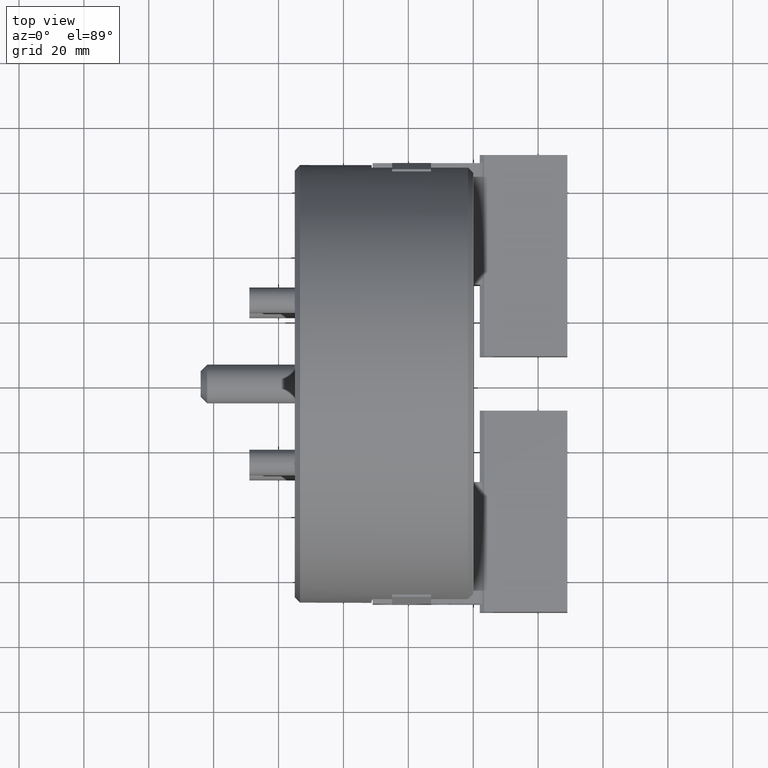
[diagram: clean part render]
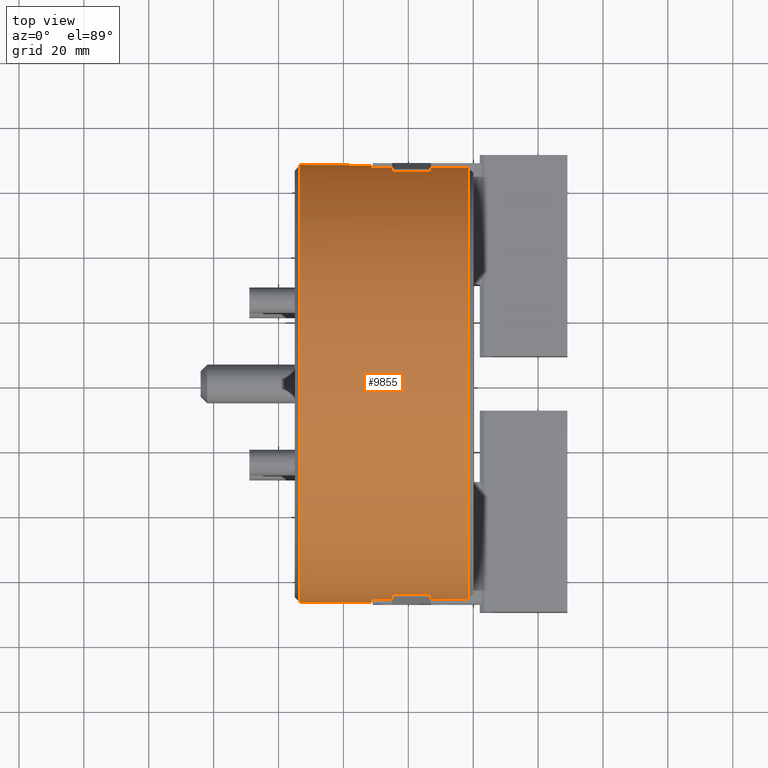
[diagram: same view with one face highlighted and labeled with its STEP entity id]
A machine part, top view. The second image highlights one B-rep face of the part: STEP entity #9855.
In plain terms, the highlighted cylindrical surface (bore or boss wall) has radius 67.5 mm, axis along (1, 0, 0).
Its self-contained STEP definition (entity closure, byte-faithful):
#151=CYLINDRICAL_SURFACE('',#10779,67.5);
#318=CIRCLE('',#10076,67.5);
#319=CIRCLE('',#10079,67.5);
#322=CIRCLE('',#10086,67.5);
#323=CIRCLE('',#10089,67.5);
#342=CIRCLE('',#10131,67.5);
#345=CIRCLE('',#10141,67.5);
#346=CIRCLE('',#10143,67.5);
#368=CIRCLE('',#10183,67.5);
#369=CIRCLE('',#10185,67.5);
#371=CIRCLE('',#10189,67.5);
#373=CIRCLE('',#10192,67.5);
#376=CIRCLE('',#10198,67.5);
#377=CIRCLE('',#10202,67.5);
#378=CIRCLE('',#10204,67.5);
#380=CIRCLE('',#10208,67.5);
#383=CIRCLE('',#10212,67.5);
#384=CIRCLE('',#10215,67.5);
#387=CIRCLE('',#10219,67.5);
#388=CIRCLE('',#10221,67.5);
#390=CIRCLE('',#10225,67.5);
#574=CIRCLE('',#10764,67.5);
#3060=ORIENTED_EDGE('',*,*,#3600,.F.);
#3061=ORIENTED_EDGE('',*,*,#3691,.T.);
#3062=ORIENTED_EDGE('',*,*,#3686,.T.);
#3063=ORIENTED_EDGE('',*,*,#3827,.T.);
#3064=ORIENTED_EDGE('',*,*,#3830,.T.);
#3065=ORIENTED_EDGE('',*,*,#3836,.T.);
#3066=ORIENTED_EDGE('',*,*,#3838,.T.);
#3067=ORIENTED_EDGE('',*,*,#3840,.T.);
#3068=ORIENTED_EDGE('',*,*,#3844,.T.);
#3069=ORIENTED_EDGE('',*,*,#3848,.T.);
#3070=ORIENTED_EDGE('',*,*,#3853,.F.);
#3071=ORIENTED_EDGE('',*,*,#3856,.F.);
#3072=ORIENTED_EDGE('',*,*,#3858,.F.);
#3073=ORIENTED_EDGE('',*,*,#3861,.F.);
#3074=ORIENTED_EDGE('',*,*,#3863,.F.);
#3075=ORIENTED_EDGE('',*,*,#3869,.F.);
#3076=ORIENTED_EDGE('',*,*,#3871,.F.);
#3077=ORIENTED_EDGE('',*,*,#3713,.F.);
#3078=ORIENTED_EDGE('',*,*,#3659,.T.);
#3079=ORIENTED_EDGE('',*,*,#3712,.F.);
#3080=ORIENTED_EDGE('',*,*,#3629,.F.);
#3081=ORIENTED_EDGE('',*,*,#3624,.T.);
#3082=ORIENTED_EDGE('',*,*,#3875,.T.);
#3083=ORIENTED_EDGE('',*,*,#3878,.T.);
#3084=ORIENTED_EDGE('',*,*,#3879,.T.);
#3085=ORIENTED_EDGE('',*,*,#3619,.T.);
#3086=ORIENTED_EDGE('',*,*,#3617,.T.);
#3087=ORIENTED_EDGE('',*,*,#3707,.T.);
#3088=ORIENTED_EDGE('',*,*,#3882,.T.);
#3089=ORIENTED_EDGE('',*,*,#3702,.F.);
#3090=ORIENTED_EDGE('',*,*,#3610,.F.);
#3091=ORIENTED_EDGE('',*,*,#3608,.F.);
#3092=ORIENTED_EDGE('',*,*,#3883,.F.);
#3093=ORIENTED_EDGE('',*,*,#3888,.F.);
#3094=ORIENTED_EDGE('',*,*,#3889,.F.);
#3095=ORIENTED_EDGE('',*,*,#3602,.F.);
#3096=ORIENTED_EDGE('',*,*,#4557,.T.);
#3600=EDGE_CURVE('',#4846,#4847,#5765,.T.);
#3602=EDGE_CURVE('',#4847,#4848,#318,.T.);
#3608=EDGE_CURVE('',#4851,#4852,#319,.T.);
#3610=EDGE_CURVE('',#4852,#4853,#5773,.T.);
#3617=EDGE_CURVE('',#4858,#4857,#5778,.T.);
#3619=EDGE_CURVE('',#4859,#4858,#322,.T.);
#3624=EDGE_CURVE('',#4862,#4863,#323,.T.);
#3629=EDGE_CURVE('',#4862,#4864,#5787,.T.);
#3659=EDGE_CURVE('',#4886,#4885,#5801,.T.);
#3686=EDGE_CURVE('',#4909,#4910,#5828,.T.);
#3691=EDGE_CURVE('',#4846,#4909,#342,.T.);
#3702=EDGE_CURVE('',#4853,#4922,#5841,.T.);
#3707=EDGE_CURVE('',#4857,#4925,#5845,.T.);
#3712=EDGE_CURVE('',#4864,#4885,#345,.T.);
#3713=EDGE_CURVE('',#4886,#4928,#346,.T.);
#3827=EDGE_CURVE('',#4910,#5021,#368,.T.);
#3830=EDGE_CURVE('',#5021,#5023,#369,.T.);
#3836=EDGE_CURVE('',#5023,#5027,#5944,.T.);
#3838=EDGE_CURVE('',#5027,#5028,#371,.T.);
#3840=EDGE_CURVE('',#5028,#5030,#373,.T.);
#3844=EDGE_CURVE('',#5030,#5032,#5949,.T.);
#3848=EDGE_CURVE('',#5032,#5035,#5953,.T.);
#3853=EDGE_CURVE('',#5038,#5035,#376,.T.);
#3856=EDGE_CURVE('',#5040,#5038,#5958,.T.);
#3858=EDGE_CURVE('',#5041,#5040,#5960,.T.);
#3861=EDGE_CURVE('',#5043,#5041,#377,.T.);
#3863=EDGE_CURVE('',#5044,#5043,#378,.T.);
#3869=EDGE_CURVE('',#5048,#5044,#5968,.T.);
#3871=EDGE_CURVE('',#4928,#5048,#380,.T.);
#3875=EDGE_CURVE('',#4863,#5051,#383,.T.);
#3878=EDGE_CURVE('',#5051,#5053,#5973,.T.);
#3879=EDGE_CURVE('',#5053,#4859,#384,.T.);
#3882=EDGE_CURVE('',#4925,#4922,#387,.T.);
#3883=EDGE_CURVE('',#5055,#4851,#388,.T.);
#3888=EDGE_CURVE('',#5058,#5055,#5977,.T.);
#3889=EDGE_CURVE('',#4848,#5058,#390,.T.);
#4557=EDGE_CURVE('',#5472,#5472,#574,.T.);
#4846=VERTEX_POINT('',#14315);
#4847=VERTEX_POINT('',#14317);
#4848=VERTEX_POINT('',#14321);
#4851=VERTEX_POINT('',#14331);
#4852=VERTEX_POINT('',#14333);
#4853=VERTEX_POINT('',#14337);
#4857=VERTEX_POINT('',#14347);
#4858=VERTEX_POINT('',#14351);
#4859=VERTEX_POINT('',#14355);
#4862=VERTEX_POINT('',#14365);
#4863=VERTEX_POINT('',#14366);
#4864=VERTEX_POINT('',#14371);
#4885=VERTEX_POINT('',#14440);
#4886=VERTEX_POINT('',#14442);
#4909=VERTEX_POINT('',#14496);
#4910=VERTEX_POINT('',#14497);
#4922=VERTEX_POINT('',#14529);
#4925=VERTEX_POINT('',#14539);
#4928=VERTEX_POINT('',#14551);
#5021=VERTEX_POINT('',#14796);
#5023=VERTEX_POINT('',#14802);
#5027=VERTEX_POINT('',#14812);
#5028=VERTEX_POINT('',#14816);
#5030=VERTEX_POINT('',#14822);
#5032=VERTEX_POINT('',#14829);
#5035=VERTEX_POINT('',#14836);
#5038=VERTEX_POINT('',#14845);
#5040=VERTEX_POINT('',#14851);
#5041=VERTEX_POINT('',#14855);
#5043=VERTEX_POINT('',#14861);
#5044=VERTEX_POINT('',#14866);
#5048=VERTEX_POINT('',#14876);
#5051=VERTEX_POINT('',#14887);
#5053=VERTEX_POINT('',#14893);
#5055=VERTEX_POINT('',#14904);
#5058=VERTEX_POINT('',#14912);
#5472=VERTEX_POINT('',#16474);
#5765=LINE('',#14316,#6711);
#5773=LINE('',#14336,#6719);
#5778=LINE('',#14350,#6724);
#5787=LINE('',#14374,#6733);
#5801=LINE('',#14441,#6747);
#5828=LINE('',#14495,#6774);
#5841=LINE('',#14528,#6787);
#5845=LINE('',#14538,#6791);
#5944=LINE('',#14813,#6890);
#5949=LINE('',#14828,#6895);
#5953=LINE('',#14837,#6899);
#5958=LINE('',#14852,#6904);
#5960=LINE('',#14856,#6906);
#5968=LINE('',#14877,#6914);
#5973=LINE('',#14894,#6919);
#5977=LINE('',#14913,#6923);
#6711=VECTOR('',#11388,1000.);
#6719=VECTOR('',#11408,1000.);
#6724=VECTOR('',#11421,1000.);
#6733=VECTOR('',#11444,1000.);
#6747=VECTOR('',#11524,1000.);
#6774=VECTOR('',#11559,1000.);
#6787=VECTOR('',#11586,1000.);
#6791=VECTOR('',#11596,1000.);
#6890=VECTOR('',#11793,1000.);
#6895=VECTOR('',#11810,1000.);
#6899=VECTOR('',#11816,1000.);
#6904=VECTOR('',#11831,1000.);
#6906=VECTOR('',#11835,1000.);
#6914=VECTOR('',#11855,1000.);
#6919=VECTOR('',#11874,1000.);
#6923=VECTOR('',#11898,1000.);
#8087=EDGE_LOOP('',(#3060,#3061,#3062,#3063,#3064,#3065,#3066,#3067,#3068,
#3069,#3070,#3071,#3072,#3073,#3074,#3075,#3076,#3077,#3078,#3079,#3080,
#3081,#3082,#3083,#3084,#3085,#3086,#3087,#3088,#3089,#3090,#3091,#3092,
#3093,#3094,#3095));
#8088=EDGE_LOOP('',(#3096));
#8835=FACE_BOUND('',#8087,.T.);
#8836=FACE_BOUND('',#8088,.T.);
#9855=ADVANCED_FACE('',(#8835,#8836),#151,.T.);
#10076=AXIS2_PLACEMENT_3D('',#14320,#11392,#11393);
#10079=AXIS2_PLACEMENT_3D('',#14332,#11403,#11404);
#10086=AXIS2_PLACEMENT_3D('',#14354,#11425,#11426);
#10089=AXIS2_PLACEMENT_3D('',#14364,#11435,#11436);
#10131=AXIS2_PLACEMENT_3D('',#14505,#11567,#11568);
#10141=AXIS2_PLACEMENT_3D('',#14548,#11605,#11606);
#10143=AXIS2_PLACEMENT_3D('',#14550,#11609,#11610);
#10183=AXIS2_PLACEMENT_3D('',#14795,#11777,#11778);
#10185=AXIS2_PLACEMENT_3D('',#14801,#11783,#11784);
#10189=AXIS2_PLACEMENT_3D('',#14818,#11797,#11798);
#10192=AXIS2_PLACEMENT_3D('',#14821,#11803,#11804);
#10198=AXIS2_PLACEMENT_3D('',#14846,#11825,#11826);
#10202=AXIS2_PLACEMENT_3D('',#14862,#11840,#11841);
#10204=AXIS2_PLACEMENT_3D('',#14865,#11845,#11846);
#10208=AXIS2_PLACEMENT_3D('',#14881,#11859,#11860);
#10212=AXIS2_PLACEMENT_3D('',#14888,#11868,#11869);
#10215=AXIS2_PLACEMENT_3D('',#14896,#11877,#11878);
#10219=AXIS2_PLACEMENT_3D('',#14901,#11885,#11886);
#10221=AXIS2_PLACEMENT_3D('',#14903,#11889,#11890);
#10225=AXIS2_PLACEMENT_3D('',#14915,#11901,#11902);
#10764=AXIS2_PLACEMENT_3D('',#16473,#13426,#13427);
#10779=AXIS2_PLACEMENT_3D('',#16493,#13456,#13457);
#11388=DIRECTION('',(-1.,0.,0.));
#11392=DIRECTION('',(-1.,-2.0189182148087E-30,-2.89120579329468E-16));
#11393=DIRECTION('',(2.82695677566591E-16,-6.98296267768627E-15,-1.));
#11403=DIRECTION('',(1.,0.,0.));
#11404=DIRECTION('',(0.,6.98296267768627E-15,1.));
#11408=DIRECTION('',(-1.,0.,0.));
#11421=DIRECTION('',(-1.,0.,0.));
#11425=DIRECTION('',(-1.,0.,0.));
#11426=DIRECTION('',(0.,-6.98296267768627E-15,-1.));
#11435=DIRECTION('',(1.,-2.0189182148087E-30,-2.89120579329468E-16));
#11436=DIRECTION('',(2.82695677566591E-16,6.98296267768627E-15,1.));
#11444=DIRECTION('',(1.,0.,0.));
#11524=DIRECTION('',(1.,0.,0.));
#11559=DIRECTION('',(-1.,0.,0.));
#11567=DIRECTION('',(-1.,0.,0.));
#11568=DIRECTION('',(0.,1.39659253553725E-14,1.));
#11586=DIRECTION('',(-1.,0.,0.));
#11596=DIRECTION('',(-1.,0.,0.));
#11605=DIRECTION('',(1.,0.,0.));
#11606=DIRECTION('',(0.,0.,-1.));
#11609=DIRECTION('',(-1.,0.,2.89120579329468E-16));
#11610=DIRECTION('',(2.82695677566591E-16,0.,1.));
#11777=DIRECTION('',(1.,4.03783642961741E-30,2.89120579329468E-16));
#11778=DIRECTION('',(2.82695677566591E-16,-1.39659253553725E-14,-1.));
#11783=DIRECTION('',(1.,4.03783642961741E-30,2.89120579329468E-16));
#11784=DIRECTION('',(2.82695677566591E-16,-1.39659253553725E-14,-1.));
#11793=DIRECTION('',(-1.,0.,0.));
#11797=DIRECTION('',(-1.,0.,0.));
#11798=DIRECTION('',(0.,1.39659253553725E-14,1.));
#11803=DIRECTION('',(-1.,0.,0.));
#11804=DIRECTION('',(0.,1.39659253553725E-14,1.));
#11810=DIRECTION('',(-1.,0.,0.));
#11816=DIRECTION('',(-1.,0.,0.));
#11825=DIRECTION('',(1.,0.,0.));
#11826=DIRECTION('',(0.,0.,-1.));
#11831=DIRECTION('',(-1.,0.,0.));
#11835=DIRECTION('',(-1.,0.,0.));
#11840=DIRECTION('',(1.,0.,0.));
#11841=DIRECTION('',(0.,0.,-1.));
#11845=DIRECTION('',(1.,0.,0.));
#11846=DIRECTION('',(0.,0.,-1.));
#11855=DIRECTION('',(-1.,0.,0.));
#11859=DIRECTION('',(-1.,0.,2.89120579329468E-16));
#11860=DIRECTION('',(2.82695677566591E-16,0.,1.));
#11868=DIRECTION('',(1.,-2.0189182148087E-30,-2.89120579329468E-16));
#11869=DIRECTION('',(2.82695677566591E-16,6.98296267768627E-15,1.));
#11874=DIRECTION('',(-1.,0.,0.));
#11877=DIRECTION('',(-1.,0.,0.));
#11878=DIRECTION('',(0.,-6.98296267768627E-15,-1.));
#11885=DIRECTION('',(-1.,0.,0.));
#11886=DIRECTION('',(0.,-6.98296267768627E-15,-1.));
#11889=DIRECTION('',(1.,0.,0.));
#11890=DIRECTION('',(0.,6.98296267768627E-15,1.));
#11898=DIRECTION('',(-1.,0.,0.));
#11901=DIRECTION('',(-1.,-2.0189182148087E-30,-2.89120579329468E-16));
#11902=DIRECTION('',(2.82695677566591E-16,-6.98296267768627E-15,-1.));
#13426=DIRECTION('',(1.,0.,0.));
#13427=DIRECTION('',(0.,0.,-1.));
#13456=DIRECTION('',(1.,0.,0.));
#13457=DIRECTION('',(0.,0.,-1.));
#14315=CARTESIAN_POINT('',(-1.6,-66.4957893403786,11.5999999999995));
#14316=CARTESIAN_POINT('',(2.75,-66.4957893403786,11.5999999999995));
#14317=CARTESIAN_POINT('',(-13.,-66.4957893403786,11.5999999999995));
#14320=CARTESIAN_POINT('',(-13.,0.,0.));
#14321=CARTESIAN_POINT('',(-13.,-65.2849714712354,17.1499999999995));
#14331=CARTESIAN_POINT('',(-25.,-65.2849714712354,17.1499999999995));
#14332=CARTESIAN_POINT('',(-25.,0.,0.));
#14333=CARTESIAN_POINT('',(-25.,-66.5131565932635,11.4999999999995));
#14336=CARTESIAN_POINT('',(2.75,-66.5131565932636,11.4999999999995));
#14337=CARTESIAN_POINT('',(-31.,-66.5131565932636,11.4999999999995));
#14347=CARTESIAN_POINT('',(-31.,-66.5131565932636,-11.5000000000005));
#14350=CARTESIAN_POINT('',(2.75,-66.5131565932636,-11.4999999999995));
#14351=CARTESIAN_POINT('',(-25.,-66.5131565932636,-11.5000000000005));
#14354=CARTESIAN_POINT('',(-25.,0.,0.));
#14355=CARTESIAN_POINT('',(-25.,-65.2849714712351,-17.1500000000005));
#14364=CARTESIAN_POINT('',(-13.,0.,0.));
#14365=CARTESIAN_POINT('',(-13.,-66.4957893403785,-11.6000000000005));
#14366=CARTESIAN_POINT('',(-13.,-65.2849714712351,-17.1500000000005));
#14371=CARTESIAN_POINT('',(-1.6,-66.4957893403785,-11.6000000000005));
#14374=CARTESIAN_POINT('',(2.75,-66.4957893403785,-11.6000000000005));
#14440=CARTESIAN_POINT('',(-1.6,66.4957893403786,-11.6));
#14441=CARTESIAN_POINT('',(2.75,66.4957893403785,-11.6));
#14442=CARTESIAN_POINT('',(-13.,66.4957893403786,-11.6));
#14495=CARTESIAN_POINT('',(2.75,66.4957893403785,11.6));
#14496=CARTESIAN_POINT('',(-1.6,66.4957893403786,11.6));
#14497=CARTESIAN_POINT('',(-13.,66.4957893403786,11.6));
#14505=CARTESIAN_POINT('',(-1.6,0.,0.));
#14528=CARTESIAN_POINT('',(2.75,-66.5131565932635,11.5000000000005));
#14529=CARTESIAN_POINT('',(-31.3,-66.5131565932635,11.5000000000005));
#14538=CARTESIAN_POINT('',(2.75,-66.5131565932636,-11.4999999999995));
#14539=CARTESIAN_POINT('',(-31.3,-66.5131565932636,-11.4999999999995));
#14548=CARTESIAN_POINT('',(-1.6,0.,0.));
#14550=CARTESIAN_POINT('',(-13.,0.,0.));
#14551=CARTESIAN_POINT('',(-13.,65.2849714712353,-17.15));
#14795=CARTESIAN_POINT('',(-13.,0.,0.));
#14796=CARTESIAN_POINT('',(-13.,65.2849714712353,17.15));
#14801=CARTESIAN_POINT('',(-13.,0.,0.));
#14802=CARTESIAN_POINT('',(-13.,65.1920240520267,17.4999999999991));
#14812=CARTESIAN_POINT('',(-25.,65.1920240520267,17.4999999999991));
#14813=CARTESIAN_POINT('',(2.74999999999999,65.1920240520267,17.4999999999991));
#14816=CARTESIAN_POINT('',(-25.,65.2849714712353,17.15));
#14818=CARTESIAN_POINT('',(-25.,0.,0.));
#14821=CARTESIAN_POINT('',(-25.,0.,0.));
#14822=CARTESIAN_POINT('',(-25.,66.5131565932637,11.4999999999991));
#14828=CARTESIAN_POINT('',(2.75,66.5131565932637,11.4999999999991));
#14829=CARTESIAN_POINT('',(-31.,66.5131565932637,11.4999999999991));
#14836=CARTESIAN_POINT('',(-31.3,66.5131565932637,11.4999999999991));
#14837=CARTESIAN_POINT('',(2.75,66.5131565932637,11.4999999999991));
#14845=CARTESIAN_POINT('',(-31.3,66.5131565932636,-11.5));
#14846=CARTESIAN_POINT('',(-31.3,0.,0.));
#14851=CARTESIAN_POINT('',(-31.,66.5131565932636,-11.5));
#14852=CARTESIAN_POINT('',(2.75,66.5131565932636,-11.5));
#14855=CARTESIAN_POINT('',(-25.,66.5131565932636,-11.5));
#14856=CARTESIAN_POINT('',(2.75,66.5131565932636,-11.5));
#14861=CARTESIAN_POINT('',(-25.,65.2849714712353,-17.15));
#14862=CARTESIAN_POINT('',(-25.,0.,0.));
#14865=CARTESIAN_POINT('',(-25.,0.,0.));
#14866=CARTESIAN_POINT('',(-25.,65.1920240520265,-17.5));
#14876=CARTESIAN_POINT('',(-13.,65.1920240520265,-17.5));
#14877=CARTESIAN_POINT('',(2.74999999999999,65.1920240520265,-17.5));
#14881=CARTESIAN_POINT('',(-13.,0.,0.));
#14887=CARTESIAN_POINT('',(-13.,-65.1920240520266,-17.4999999999995));
#14888=CARTESIAN_POINT('',(-13.,0.,0.));
#14893=CARTESIAN_POINT('',(-25.,-65.1920240520266,-17.4999999999995));
#14894=CARTESIAN_POINT('',(2.74999999999999,-65.1920240520266,-17.4999999999996));
#14896=CARTESIAN_POINT('',(-25.,0.,0.));
#14901=CARTESIAN_POINT('',(-31.3,0.,0.));
#14903=CARTESIAN_POINT('',(-25.,0.,0.));
#14904=CARTESIAN_POINT('',(-25.,-65.1920240520264,17.5000000000005));
#14912=CARTESIAN_POINT('',(-13.,-65.1920240520264,17.5000000000005));
#14913=CARTESIAN_POINT('',(2.74999999999999,-65.1920240520264,17.5000000000005));
#14915=CARTESIAN_POINT('',(-13.,0.,0.));
#16473=CARTESIAN_POINT('',(-53.4,0.,0.));
#16474=CARTESIAN_POINT('',(-53.4,0.,-67.5));
#16493=CARTESIAN_POINT('',(2.75,0.,0.));